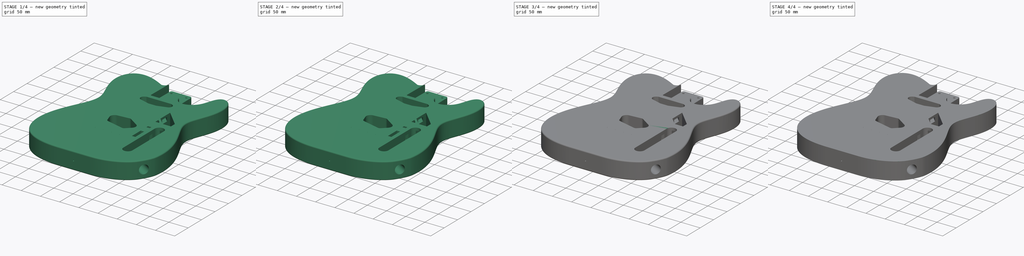
[diagram: build sequence overview — one tinted view per stage of 4, left to right]
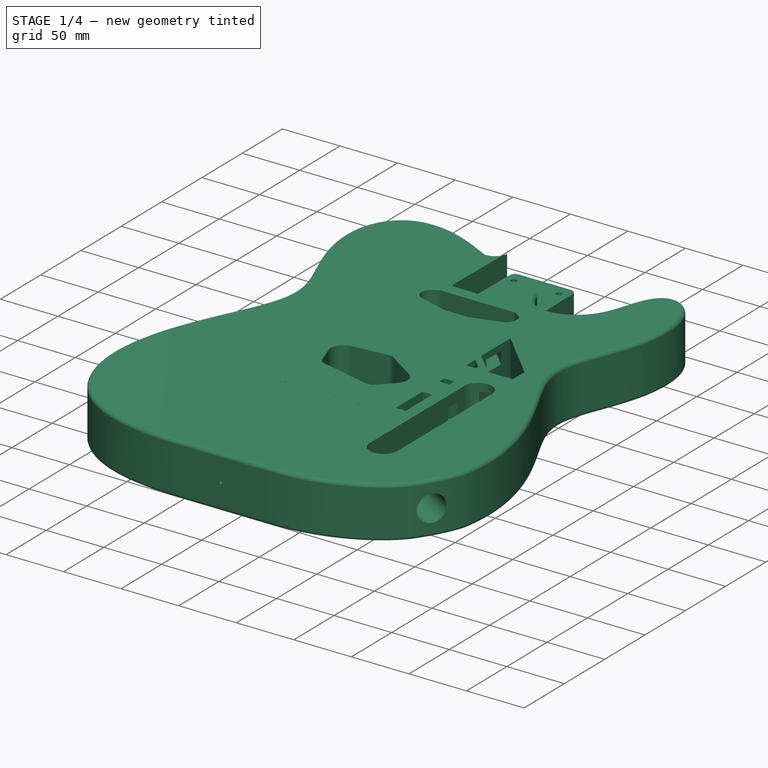
[diagram: stage 1 of 4 — iso view after this stage's code; geometry added in this stage tinted green]
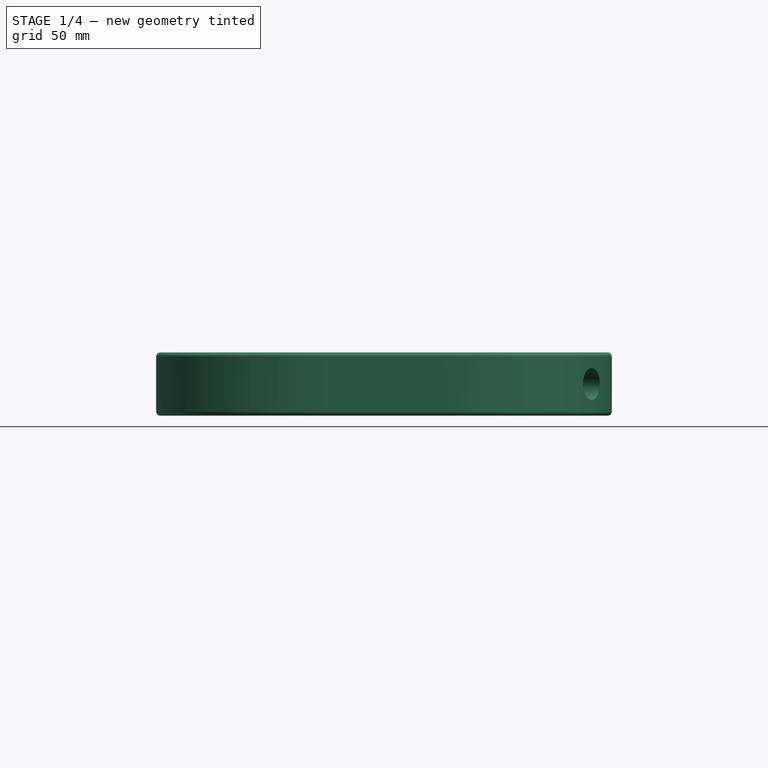
[diagram: stage 1 of 4 — front view after this stage's code; geometry added in this stage tinted green]
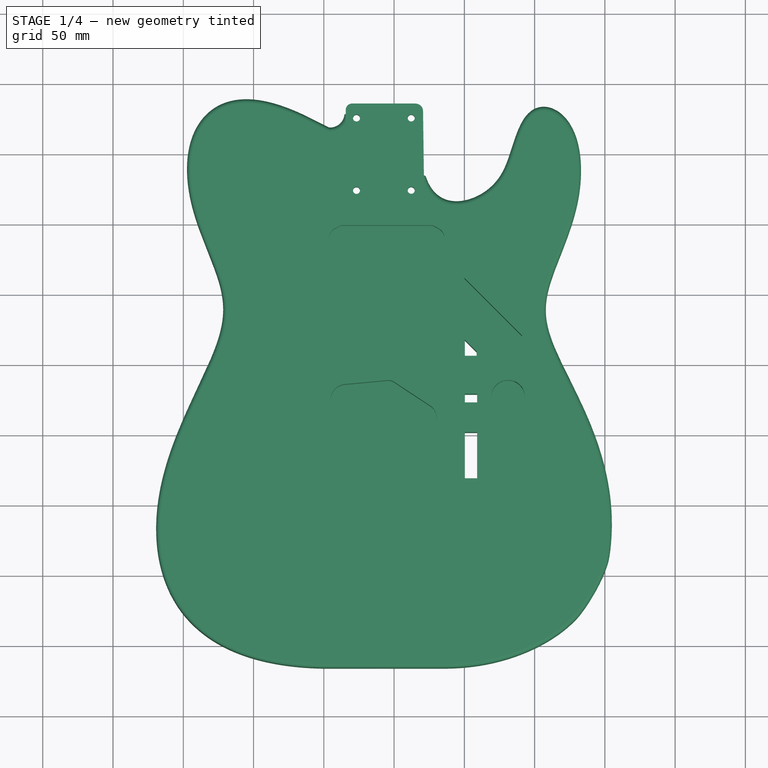
[diagram: stage 1 of 4 — top view after this stage's code; geometry added in this stage tinted green]
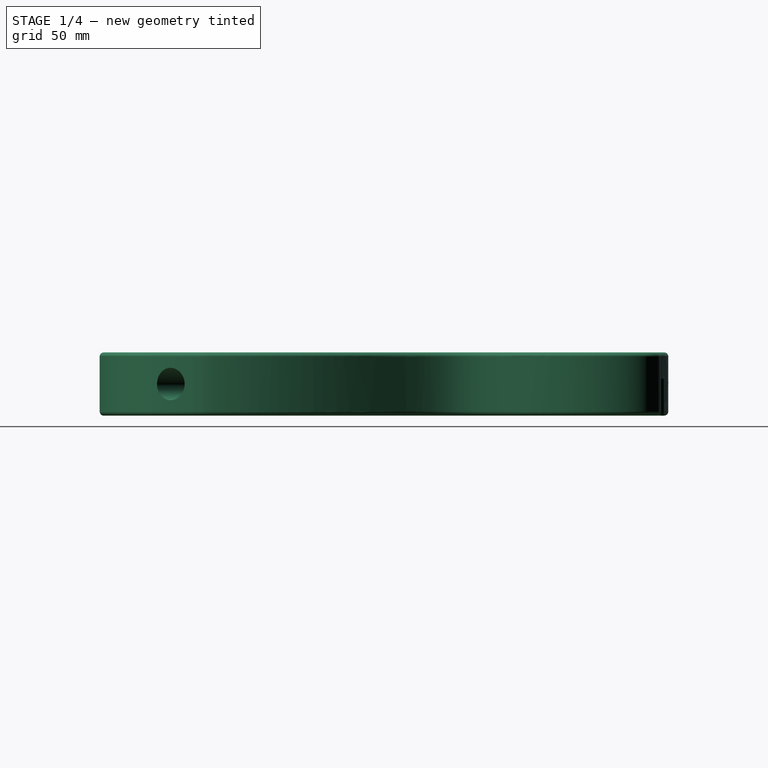
[diagram: stage 1 of 4 — right view after this stage's code; geometry added in this stage tinted green]
FCSTD DOCUMENT  (FreeCAD 0.19R24366 (Git))
Label: tele-body
License: All rights reserved
LicenseURL: http://en.wikipedia.org/wiki/All_rights_reserved
objects: Sketcher::SketchObject×9, PartDesign::Pad×9, Part::Feature×3, PartDesign::Pocket×3, App::Part×1, Part::MultiFuse×1, PartDesign::FeatureBase×1, PartDesign::Plane×1, PartDesign::Body×1
note: 40 computed .brp shape members not serialized (recipe doc carries the construction recipe); baked Part::Feature solids carry a one-line shape summary decoded from their .brp

FEATURE [Part::Feature] Part__Feature  label="(未保存)"
  shape: bbox 159.9 x 288 x 45 mm, 158 faces (baked)
FEATURE [Part::Feature] Part__Feature001  label="(未保存)001"
  shape: bbox 169.1 x 285.4 x 45.01 mm, 148 faces (baked)
FEATURE [Part::Feature] Part__Feature002  label="(未保存)002"
  shape: bbox 282.1 x 290.6 x 45.01 mm, 284 faces (baked)
FEATURE [App::Part] ___________  label="(未保存)003"
  Group = -> [Part__Feature,Part__Feature001,Part__Feature002]
  Origin = -> Origin
FEATURE [Part::MultiFuse] Fusion
  Refine = true
  Shapes = -> [Part__Feature,Part__Feature001,Part__Feature002]
FEATURE [PartDesign::FeatureBase] BaseFeature
  BaseFeature = -> Fusion
FEATURE [Sketcher::SketchObject] Sketch
  FullyConstrained = false
  MapMode = 5
  Placement = pos=(3.1e-15,-9e-16,44.0003) rot=(0,0,1;0rad)
  Support = -> [BaseFeature]
  sketch-geometry (20):
    g0: LineSegment StartX=-61.5985 StartY=-102.047 StartZ=0 EndX=47.036 EndY=-102.047 EndZ=0
    g1: LineSegment StartX=47.036 StartY=-102.047 StartZ=0 EndX=47.036 EndY=-94.486 EndZ=0
    g2: LineSegment StartX=47.036 StartY=-94.486 StartZ=0 EndX=-61.5985 EndY=-94.486 EndZ=0
    g3: LineSegment StartX=-61.5985 StartY=-94.486 StartZ=0 EndX=-61.5985 EndY=-102.047 EndZ=0
    g4: LineSegment StartX=-77.7647 StartY=-7.60141 StartZ=0 EndX=-68.3776 EndY=-7.60141 EndZ=0
    g5: LineSegment StartX=-68.3776 StartY=-7.60141 StartZ=0 EndX=-68.3776 EndY=-20.2963 EndZ=0
    g6: LineSegment StartX=-68.3776 StartY=-20.2963 StartZ=0 EndX=-77.7647 EndY=-20.2963 EndZ=0
    g7: LineSegment StartX=-77.7647 StartY=-20.2963 StartZ=0 EndX=-77.7647 EndY=-7.60141 EndZ=0
    g8: LineSegment StartX=-99.2486 StartY=39.4666 StartZ=0 EndX=-87.5371 EndY=39.4666 EndZ=0
    g9: LineSegment StartX=-87.5371 StartY=39.4666 StartZ=0 EndX=-87.5371 EndY=31.6888 EndZ=0
    g10: LineSegment StartX=-87.5371 StartY=31.6888 StartZ=0 EndX=-99.2486 EndY=31.6888 EndZ=0
    g11: LineSegment StartX=-99.2486 StartY=31.6888 StartZ=0 EndX=-99.2486 EndY=39.4666 EndZ=0
    g12: LineSegment StartX=48.1816 StartY=-1.61729 StartZ=0 EndX=60.7184 EndY=-1.61729 EndZ=0
    g13: LineSegment StartX=60.7184 StartY=-1.61729 StartZ=0 EndX=60.7184 EndY=-13.8873 EndZ=0
    g14: LineSegment StartX=60.7184 StartY=-13.8873 StartZ=0 EndX=48.1816 EndY=-13.8873 EndZ=0
    g15: LineSegment StartX=48.1816 StartY=-13.8873 StartZ=0 EndX=48.1816 EndY=-1.61729 EndZ=0
    g16: LineSegment StartX=79.0094 StartY=33.4684 StartZ=0 EndX=89.0172 EndY=32.8092 EndZ=0
    g17: LineSegment StartX=89.0172 StartY=32.8092 StartZ=0 EndX=86.2006 EndY=38.9816 EndZ=0
    g18: LineSegment StartX=86.2006 StartY=38.9816 StartZ=0 EndX=80.987 EndY=39.7607 EndZ=0
    g19: LineSegment StartX=80.987 StartY=39.7607 StartZ=0 EndX=79.0094 EndY=33.4684 EndZ=0
  constraints (36):
    c: Coincident(g0,g1)
    c: Coincident(g1,g2)
    c: Coincident(g2,g3)
    c: Coincident(g3,g0)
    c: Horizontal(g0)
    c: Horizontal(g2)
    c: Vertical(g1)
    c: Vertical(g3)
    c: Coincident(g4,g5)
    c: Coincident(g5,g6)
    c: Coincident(g6,g7)
    c: Coincident(g7,g4)
    c: Horizontal(g4)
    c: Horizontal(g6)
    c: Vertical(g5)
    c: Vertical(g7)
    c: Coincident(g8,g9)
    c: Coincident(g9,g10)
    c: Coincident(g10,g11)
    c: Coincident(g11,g8)
    c: Horizontal(g8)
    c: Horizontal(g10)
    c: Vertical(g9)
    c: Vertical(g11)
    c: Coincident(g12,g13)
    c: Coincident(g13,g14)
    c: Coincident(g14,g15)
    c: Coincident(g15,g12)
    c: Horizontal(g12)
    c: Horizontal(g14)
    c: Vertical(g13)
    c: Vertical(g15)
    c: Coincident(g16,g17)
    c: Coincident(g17,g18)
    c: Coincident(g18,g19)
    c: Coincident(g19,g16)
FEATURE [PartDesign::Pad] Pad
  BaseFeature = -> BaseFeature
  Direction = (1,1,1)
  Length = 10
  Length2 = 100
  Profile = -> Sketch
  Refine = true
  Type = 3
  UpToFace = -> BaseFeature [Face65]
FEATURE [Sketcher::SketchObject] Sketch001
  FullyConstrained = false
  MapMode = 5
  Placement = pos=(3.1e-15,-9e-16,44.0003) rot=(0,0,1;0rad)
  Support = -> [Pad]
  sketch-geometry (58):
    g0: LineSegment StartX=-60.3688 StartY=167.422 StartZ=0 EndX=-95.6713 EndY=181.694 EndZ=0
    g1: LineSegment StartX=-95.6713 StartY=181.694 StartZ=0 EndX=-101.733 EndY=169.192 EndZ=0
    g2: LineSegment StartX=-101.733 StartY=169.192 StartZ=0 EndX=-107.486 EndY=168.892 EndZ=0
    g3: LineSegment StartX=-107.486 StartY=168.892 StartZ=0 EndX=-114.037 EndY=181.122 EndZ=0
    g4: LineSegment StartX=-114.037 StartY=181.122 StartZ=0 EndX=-126.257 EndY=174.249 EndZ=0
    g5: LineSegment StartX=-126.257 StartY=174.249 StartZ=0 EndX=-135.186 EndY=164.78 EndZ=0
    g6: LineSegment StartX=-135.186 StartY=164.78 StartZ=0 EndX=-142.761 EndY=141.157 EndZ=0
    g7: LineSegment StartX=-142.761 StartY=141.157 StartZ=0 EndX=-134.45 EndY=105.539 EndZ=0
    g8: LineSegment StartX=-134.45 StartY=105.539 StartZ=0 EndX=-119.599 EndY=64.0739 EndZ=0
    g9: LineSegment StartX=-119.599 StartY=64.0739 StartZ=0 EndX=-113.366 EndY=38.2506 EndZ=0
    g10: LineSegment StartX=-113.366 StartY=38.2506 StartZ=0 EndX=-113.053 EndY=32.7654 EndZ=0
    g11: LineSegment StartX=-113.053 StartY=32.7654 StartZ=0 EndX=-136.153 EndY=-21.108 EndZ=0
    g12: LineSegment StartX=-136.153 StartY=-21.108 StartZ=0 EndX=-159.732 EndY=-82.9638 EndZ=0
    g13: LineSegment StartX=-159.732 StartY=-82.9638 StartZ=0 EndX=-162.146 EndY=-127.498 EndZ=0
    g14: LineSegment StartX=-162.146 StartY=-127.498 StartZ=0 EndX=-153.673 EndY=-159.8 EndZ=0
    g15: LineSegment StartX=-153.673 StartY=-159.8 StartZ=0 EndX=-134.499 EndY=-185.902 EndZ=0
    g16: LineSegment StartX=-134.499 StartY=-185.902 StartZ=0 EndX=-105.114 EndY=-199.852 EndZ=0
    g17: LineSegment StartX=-105.114 StartY=-199.852 StartZ=0 EndX=-85.6514 EndY=-206.55 EndZ=0
    g18: LineSegment StartX=-85.6514 StartY=-206.55 StartZ=0 EndX=-21.1341 EndY=-210.043 EndZ=0
    g19: LineSegment StartX=-21.1341 StartY=-210.043 StartZ=0 EndX=-16.4852 EndY=-208.791 EndZ=0
    g20: LineSegment StartX=-16.4852 StartY=-208.791 StartZ=0 EndX=-12.7304 EndY=-196.097 EndZ=0
    g21: LineSegment StartX=-12.7304 StartY=-196.097 StartZ=0 EndX=-5.48897 EndY=-195.471 EndZ=0
    g22: LineSegment StartX=-5.48897 StartY=-195.471 StartZ=0 EndX=-5.48897 EndY=-212.189 EndZ=0
    g23: LineSegment StartX=-5.48897 StartY=-212.189 StartZ=0 EndX=-1.01895 EndY=-212.546 EndZ=0
    g24: LineSegment StartX=-1.01895 StartY=-212.546 StartZ=0 EndX=31.3644 EndY=-210.054 EndZ=0
    g25: LineSegment StartX=31.3644 StartY=-210.054 StartZ=0 EndX=65.9213 EndY=-206.252 EndZ=0
    g26: LineSegment StartX=65.9213 StartY=-206.252 StartZ=0 EndX=91.395 EndY=-199.583 EndZ=0
    g27: LineSegment StartX=91.395 StartY=-199.583 StartZ=0 EndX=119.316 EndY=-181.082 EndZ=0
    g28: LineSegment StartX=119.316 StartY=-181.082 StartZ=0 EndX=69.6882 EndY=-156.45 EndZ=0
    g29: LineSegment StartX=69.6882 StartY=-156.45 StartZ=0 EndX=64.0551 EndY=-146.322 EndZ=0
    g30: LineSegment StartX=64.0551 StartY=-146.322 StartZ=0 EndX=65.654 EndY=-101.373 EndZ=0
    g31: LineSegment StartX=65.654 StartY=-101.373 StartZ=0 EndX=61.1449 EndY=-83.9348 EndZ=0
    g32: LineSegment StartX=61.1449 StartY=-83.9348 StartZ=0 EndX=50.6905 EndY=-84.6135 EndZ=0
    g33: LineSegment StartX=50.6905 StartY=-84.6135 StartZ=0 EndX=48.7518 EndY=-84.425 EndZ=0
    g34: LineSegment StartX=48.7518 StartY=-84.425 StartZ=0 EndX=38.6796 EndY=-108.559 EndZ=0
    g35: LineSegment StartX=38.6796 StartY=-108.559 StartZ=0 EndX=-57.1935 EndY=-102.622 EndZ=0
    g36: LineSegment StartX=-57.1935 StartY=-102.622 StartZ=0 EndX=-52.1475 EndY=-48.601 EndZ=0
    g37: LineSegment StartX=-52.1475 StartY=-48.601 StartZ=0 EndX=-52.1475 EndY=128.712 EndZ=0
    g38: LineSegment StartX=-52.1475 StartY=128.712 StartZ=0 EndX=-60.3688 EndY=167.422 EndZ=0
    g39: LineSegment StartX=42.5196 StartY=78.998 StartZ=0 EndX=93.6556 EndY=29.8205 EndZ=0
    g40: LineSegment StartX=93.6556 StartY=29.8205 StartZ=0 EndX=95.8013 EndY=40.4592 EndZ=0
    g41: LineSegment StartX=95.8013 StartY=40.4592 StartZ=0 EndX=110.014 EndY=75.9818 EndZ=0
    g42: LineSegment StartX=110.014 StartY=75.9818 StartZ=0 EndX=121.59 EndY=119.021 EndZ=0
    g43: LineSegment StartX=121.59 StartY=119.021 StartZ=0 EndX=121.59 EndY=149.758 EndZ=0
    g44: LineSegment StartX=121.59 StartY=149.758 StartZ=0 EndX=106.439 EndY=163.709 EndZ=0
    g45: LineSegment StartX=106.439 StartY=163.709 StartZ=0 EndX=85.6619 EndY=137.885 EndZ=0
    g46: LineSegment StartX=85.6619 StartY=137.885 StartZ=0 EndX=55.5797 EndY=109.274 EndZ=0
    g47: LineSegment StartX=55.5797 StartY=109.274 StartZ=0 EndX=45.7847 EndY=105.712 EndZ=0
    g48: LineSegment StartX=45.7847 StartY=105.712 StartZ=0 EndX=42.5196 EndY=78.998 EndZ=0
    g49: LineSegment StartX=101.166 StartY=-124.48 StartZ=0 EndX=130.388 EndY=-143.687 EndZ=0
    g50: LineSegment StartX=130.388 StartY=-143.687 StartZ=0 EndX=147.46 EndY=-137.018 EndZ=0
    g51: LineSegment StartX=147.46 StartY=-137.018 StartZ=0 EndX=147.46 EndY=-108.645 EndZ=0
    g52: LineSegment StartX=147.46 StartY=-108.645 StartZ=0 EndX=145.731 EndY=-85.0381 EndZ=0
    g53: LineSegment StartX=145.731 StartY=-85.0381 StartZ=0 EndX=134.242 EndY=-47.4095 EndZ=0
    g54: LineSegment StartX=134.242 StartY=-47.4095 StartZ=0 EndX=126.742 EndY=-28.2665 EndZ=0
    g55: LineSegment StartX=126.742 StartY=-28.2665 StartZ=0 EndX=115.202 EndY=-14.9954 EndZ=0
    g56: LineSegment StartX=115.202 StartY=-14.9954 StartZ=0 EndX=101.166 EndY=-19.9124 EndZ=0
    g57: LineSegment StartX=101.166 StartY=-19.9124 StartZ=0 EndX=101.166 EndY=-124.48 EndZ=0
  constraints (63):
    c: Coincident(g0,g1)
    c: Coincident(g1,g2)
    c: Coincident(g2,g3)
    c: Coincident(g3,g4)
    c: Coincident(g4,g5)
    c: Coincident(g5,g6)
    c: Coincident(g6,g7)
    c: Coincident(g7,g8)
    c: Coincident(g8,g9)
    c: Coincident(g9,g10)
    c: Coincident(g10,g11)
    c: Coincident(g11,g12)
    c: Coincident(g12,g13)
    c: Coincident(g13,g14)
    c: Coincident(g14,g15)
    c: Coincident(g15,g16)
    c: Coincident(g16,g17)
    c: Coincident(g17,g18)
    c: Coincident(g18,g19)
    c: Coincident(g19,g20)
    c: Coincident(g20,g21)
    c: Coincident(g21,g22)
    c: Vertical(g22)
    c: Coincident(g22,g23)
    c: Coincident(g23,g24)
    c: Coincident(g24,g25)
    c: Coincident(g25,g26)
    c: Coincident(g26,g27)
    c: Coincident(g27,g28)
    c: Coincident(g28,g29)
    c: Coincident(g29,g30)
    c: Coincident(g30,g31)
    c: Coincident(g31,g32)
    c: Coincident(g32,g33)
    c: Coincident(g33,g34)
    c: Coincident(g34,g35)
    c: Coincident(g35,g36)
    c: Coincident(g36,g37)
    c: Vertical(g37)
    c: Coincident(g37,g38)
    c: Coincident(g38,g0)
    c: Coincident(g39,g40)
    c: Coincident(g40,g41)
    c: Coincident(g41,g42)
    c: Coincident(g42,g43)
    c: Vertical(g43)
    c: Coincident(g43,g44)
    c: Coincident(g44,g45)
    c: Coincident(g45,g46)
    c: Coincident(g46,g47)
    c: Coincident(g47,g48)
    c: Coincident(g48,g39)
    c: Coincident(g49,g50)
    c: Coincident(g50,g51)
    c: Vertical(g51)
    c: Coincident(g51,g52)
    c: Coincident(g52,g53)
    c: Coincident(g53,g54)
    c: Coincident(g54,g55)
    c: Coincident(g55,g56)
    c: Coincident(g56,g57)
    c: Coincident(g57,g49)
    c: Vertical(g57)
FEATURE [PartDesign::Pad] Pad001
  BaseFeature = -> Pad
  Direction = (1,1,1)
  Length = 10
  Length2 = 100
  Profile = -> Sketch001
  Refine = true
  Type = 3
  UpToFace = -> Pad [Face370]
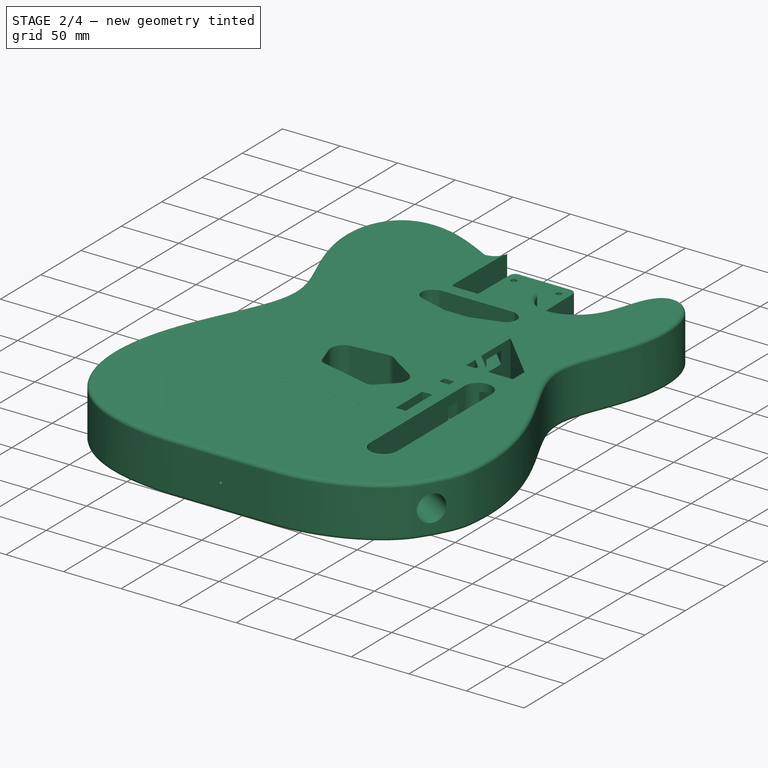
[diagram: stage 2 of 4 — iso view after this stage's code; geometry added in this stage tinted green]
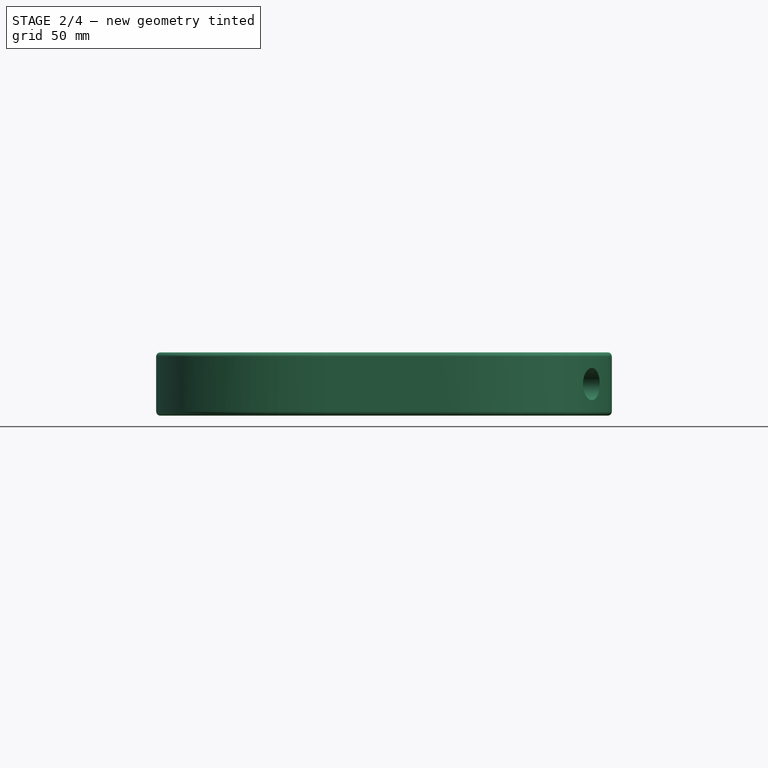
[diagram: stage 2 of 4 — front view after this stage's code; geometry added in this stage tinted green]
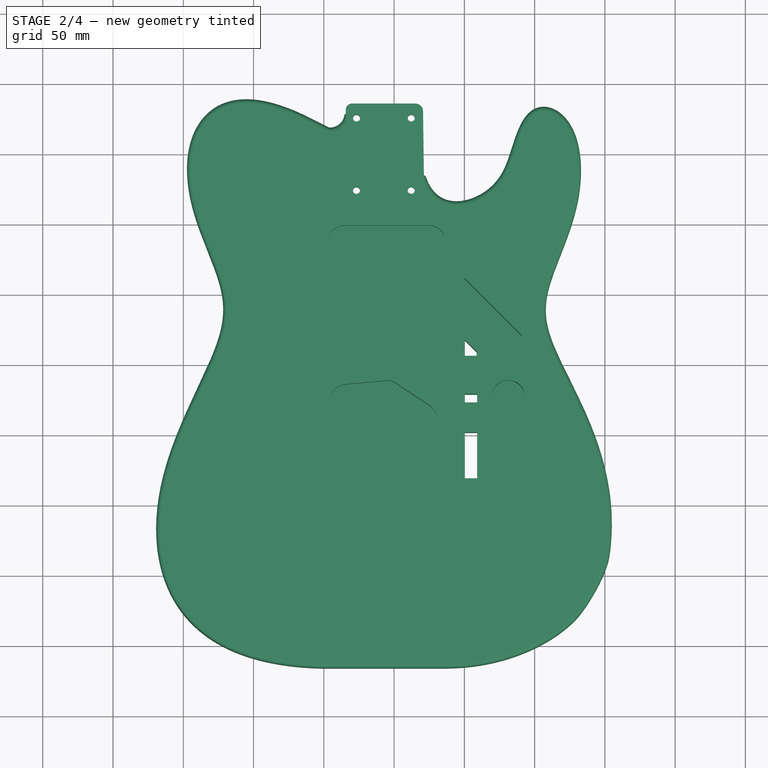
[diagram: stage 2 of 4 — top view after this stage's code; geometry added in this stage tinted green]
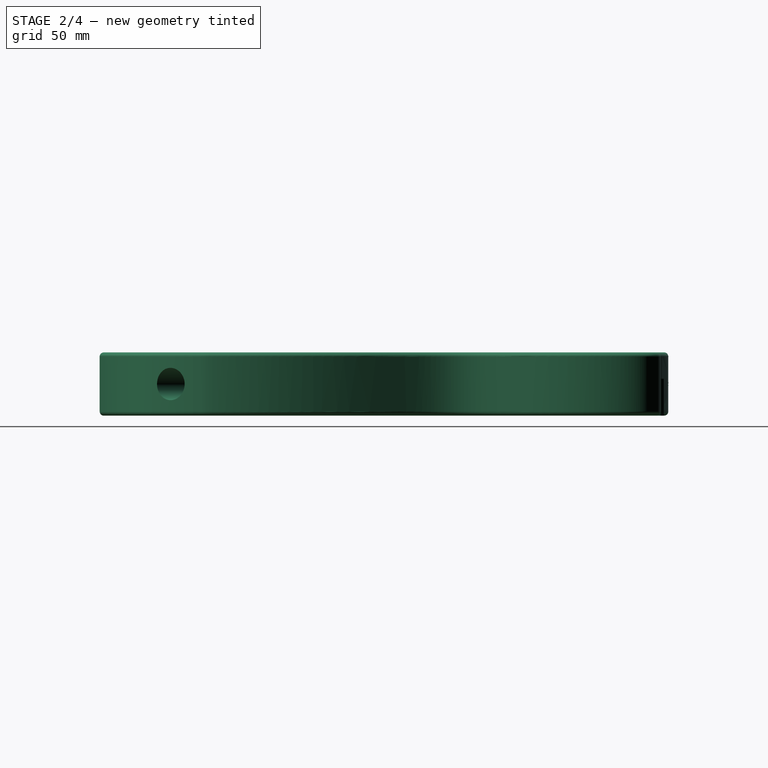
[diagram: stage 2 of 4 — right view after this stage's code; geometry added in this stage tinted green]
FEATURE [Sketcher::SketchObject] Sketch002
  FullyConstrained = false
  MapMode = 5
  Placement = pos=(0,0,-0.999699) rot=(1,0,0;3.14159rad)
  Support = -> [Pad001]
  sketch-geometry (5):
    g0: LineSegment StartX=56.0816 StartY=45.4386 StartZ=0 EndX=45.6218 EndY=42.2202 EndZ=0
    g1: LineSegment StartX=45.6218 StartY=42.2202 StartZ=0 EndX=47.4992 EndY=29.7935 EndZ=0
    g2: LineSegment StartX=47.4992 StartY=29.7935 StartZ=0 EndX=60.0152 EndY=29.7935 EndZ=0
    g3: LineSegment StartX=60.0152 StartY=29.7935 StartZ=0 EndX=60.0152 EndY=43.74 EndZ=0
    g4: LineSegment StartX=60.0152 StartY=43.74 StartZ=0 EndX=56.0816 EndY=45.4386 EndZ=0
  constraints (7):
    c: Coincident(g0,g1)
    c: Coincident(g1,g2)
    c: Horizontal(g2)
    c: Coincident(g2,g3)
    c: Vertical(g3)
    c: Coincident(g3,g4)
    c: Coincident(g4,g0)
FEATURE [PartDesign::Pad] Pad002
  BaseFeature = -> Pad001
  Direction = (1,1,1)
  Length = 15
  Length2 = 100
  Profile = -> Sketch002
  Reversed = true
  Type = 0
FEATURE [Sketcher::SketchObject] Sketch003
  FullyConstrained = false
  MapMode = 5
  Placement = pos=(0,0,-0.999699) rot=(1,0,0;3.14159rad)
  Support = -> [Pad002]
  sketch-geometry (4):
    g0: LineSegment StartX=51.7027 StartY=85.8647 StartZ=0 EndX=56.7985 EndY=85.8647 EndZ=0
    g1: LineSegment StartX=56.7985 StartY=85.8647 StartZ=0 EndX=56.7985 EndY=81.5735 EndZ=0
    g2: LineSegment StartX=56.7985 StartY=81.5735 StartZ=0 EndX=51.7027 EndY=81.5735 EndZ=0
    g3: LineSegment StartX=51.7027 StartY=81.5735 StartZ=0 EndX=51.7027 EndY=85.8647 EndZ=0
  constraints (8):
    c: Coincident(g0,g1)
    c: Coincident(g1,g2)
    c: Coincident(g2,g3)
    c: Coincident(g3,g0)
    c: Horizontal(g0)
    c: Horizontal(g2)
    c: Vertical(g1)
    c: Vertical(g3)
FEATURE [PartDesign::Pad] Pad003
  BaseFeature = -> Pad002
  Direction = (1,1,1)
  Length = 10
  Length2 = 100
  Profile = -> Sketch003
  Refine = true
  Type = 3
  UpToFace = -> Pad002 [Face2]
FEATURE [Sketcher::SketchObject] Sketch004
  FullyConstrained = false
  MapMode = 5
  Placement = pos=(0,0,-0.999699) rot=(1,0,0;3.14159rad)
  Support = -> [Pad003]
  sketch-geometry (4):
    g0: LineSegment StartX=50.8388 StartY=-20.836 StartZ=0 EndX=56.2028 EndY=-20.836 EndZ=0
    g1: LineSegment StartX=56.2028 StartY=-20.836 StartZ=0 EndX=57.5438 EndY=-26.8258 EndZ=0
    g2: LineSegment StartX=57.5438 StartY=-26.8258 StartZ=0 EndX=49.9448 EndY=-28.7926 EndZ=0
    g3: LineSegment StartX=49.9448 StartY=-28.7926 StartZ=0 EndX=50.8388 EndY=-20.836 EndZ=0
  constraints (5):
    c: Horizontal(g0)
    c: Coincident(g0,g1)
    c: Coincident(g1,g2)
    c: Coincident(g2,g3)
    c: Coincident(g3,g0)
FEATURE [PartDesign::Pad] Pad004
  BaseFeature = -> Pad003
  Direction = (1,1,1)
  Length = 9
  Length2 = 100
  Profile = -> Sketch004
  Refine = true
  Reversed = true
  Type = 0
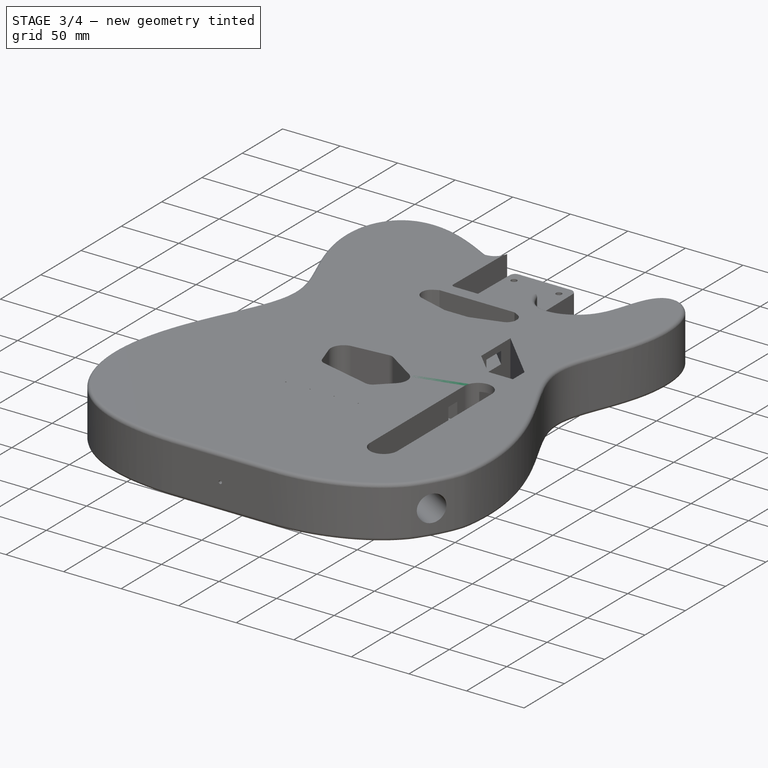
[diagram: stage 3 of 4 — iso view after this stage's code; geometry added in this stage tinted green]
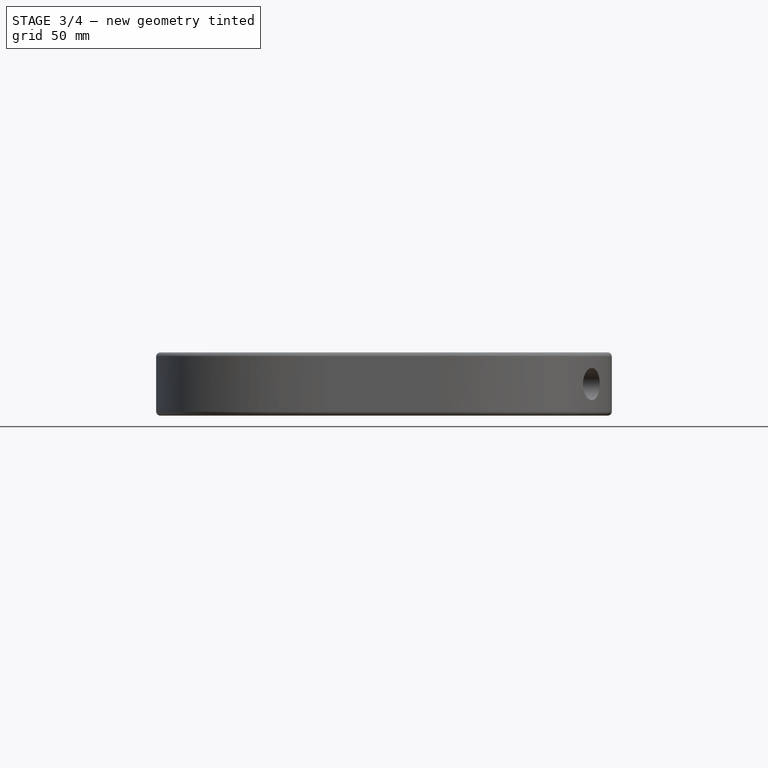
[diagram: stage 3 of 4 — front view after this stage's code; geometry added in this stage tinted green]
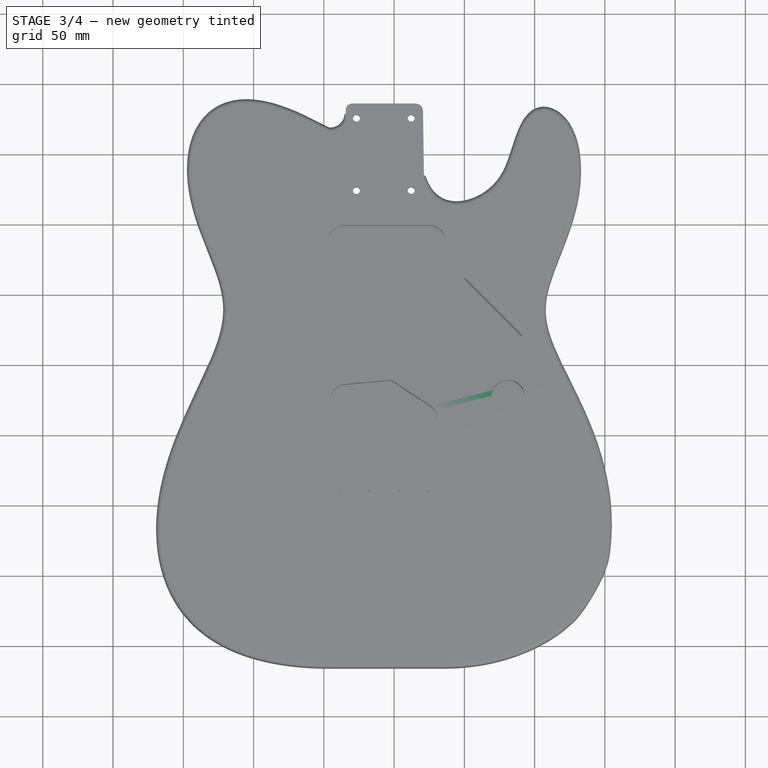
[diagram: stage 3 of 4 — top view after this stage's code; geometry added in this stage tinted green]
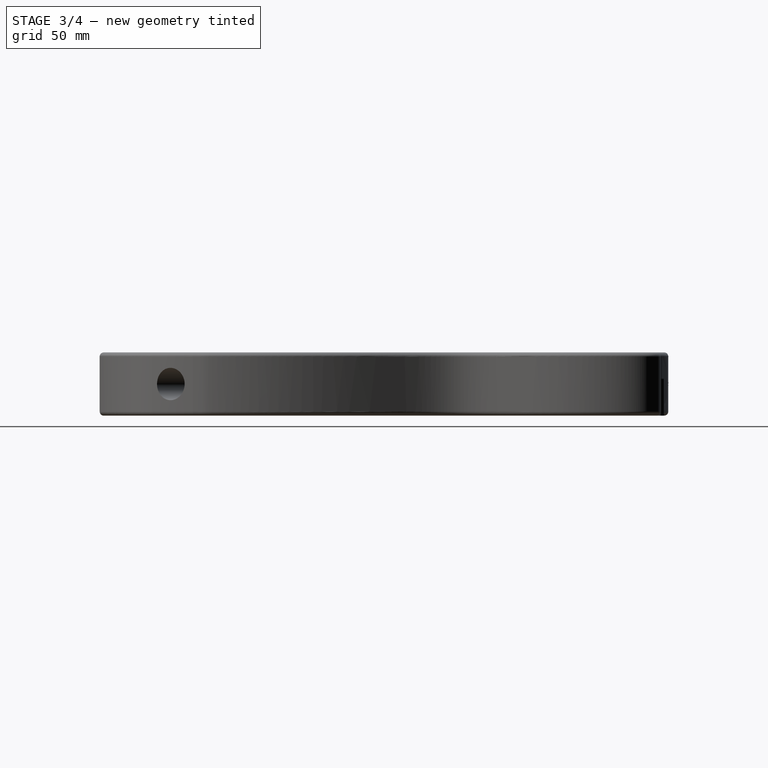
[diagram: stage 3 of 4 — right view after this stage's code; geometry added in this stage tinted green]
FEATURE [Sketcher::SketchObject] Sketch005
  FullyConstrained = false
  MapMode = 5
  Placement = pos=(0,0,-0.999699) rot=(1,0,0;3.14159rad)
  Support = -> [Pad004]
  sketch-geometry (11):
    g0: LineSegment StartX=46.6339 StartY=-25.8346 StartZ=0 EndX=56.1683 EndY=-17.9844 EndZ=0
    g1: LineSegment StartX=56.1683 StartY=-17.9844 StartZ=0 EndX=64.6762 EndY=-5.35711 EndZ=0
    g2: LineSegment StartX=64.6762 StartY=-5.35711 StartZ=0 EndX=65.593 EndY=14.9677 EndZ=0
    g3: LineSegment StartX=65.593 StartY=14.9677 StartZ=0 EndX=63.4603 EndY=29.5863 EndZ=0
    g4: LineSegment StartX=63.4603 StartY=29.5863 StartZ=0 EndX=44.7885 EndY=28.1192 EndZ=0
    g5: LineSegment StartX=44.7885 StartY=28.1192 StartZ=0 EndX=33.9001 EndY=-23.4471 EndZ=0
    g6: LineSegment StartX=33.9001 StartY=-23.4471 StartZ=0 EndX=46.6339 EndY=-25.8346 EndZ=0
    g7: LineSegment StartX=44.3171 StartY=84.5105 StartZ=0 EndX=63.9073 EndY=85.1042 EndZ=0
    g8: LineSegment StartX=63.9073 StartY=85.1042 StartZ=0 EndX=61.2359 EndY=45.627 EndZ=0
    g9: LineSegment StartX=61.2359 StartY=45.627 StartZ=0 EndX=42.2394 EndY=45.627 EndZ=0
    g10: LineSegment StartX=42.2394 StartY=45.627 StartZ=0 EndX=44.3171 EndY=84.5105 EndZ=0
  constraints (12):
    c: Coincident(g0,g1)
    c: Coincident(g1,g2)
    c: Coincident(g2,g3)
    c: Coincident(g3,g4)
    c: Coincident(g4,g5)
    c: Coincident(g5,g6)
    c: Coincident(g6,g0)
    c: Coincident(g7,g8)
    c: Coincident(g8,g9)
    c: Horizontal(g9)
    c: Coincident(g9,g10)
    c: Coincident(g10,g7)
FEATURE [PartDesign::Pad] Pad005
  BaseFeature = -> Pad004
  Direction = (1,1,1)
  Length = 10
  Length2 = 100
  Profile = -> Sketch005
  Refine = true
  Type = 3
  UpToFace = -> Pad004 [Face2]
FEATURE [PartDesign::Plane] DatumPlane
  AttachmentOffset = pos=(0,0,-15) rot=(0,0,1;0rad)
  Length = 396.697
  MapMode = 5
  Placement = pos=(0,0,14.0003) rot=(1,0,0;3.14159rad)
  ResizeMode = 0
  Support = -> [Pad005]
  Width = 477.089
FEATURE [Sketcher::SketchObject] Sketch006
  FullyConstrained = false
  MapMode = 5
  Placement = pos=(0,0,14.0003) rot=(1,0,0;3.14159rad)
  Support = -> [DatumPlane]
  sketch-geometry (11):
    g0: LineSegment StartX=94.3698 StartY=-33.1074 StartZ=0 EndX=106.475 EndY=-33.1074 EndZ=0
    g1: LineSegment StartX=106.475 StartY=-33.1074 StartZ=0 EndX=106.056 EndY=-35.085 EndZ=0
    g2: LineSegment StartX=106.056 StartY=-35.085 StartZ=0 EndX=102.939 EndY=-39.5796 EndZ=0
    g3: LineSegment StartX=102.939 StartY=-39.5796 StartZ=0 EndX=96.5871 EndY=-38.9204 EndZ=0
    g4: LineSegment StartX=96.5871 StartY=-38.9204 StartZ=0 EndX=94.3698 EndY=-33.1074 EndZ=0
    g5: LineSegment StartX=-120.1 StartY=-33.6418 StartZ=0 EndX=-117.409 EndY=-31.8743 EndZ=0
    g6: LineSegment StartX=-117.409 StartY=-31.8743 StartZ=0 EndX=-112.589 EndY=-32.5572 EndZ=0
    g7: LineSegment StartX=-112.589 StartY=-32.5572 StartZ=0 EndX=-113.432 EndY=-35.7306 EndZ=0
    g8: LineSegment StartX=-113.432 StartY=-35.7306 StartZ=0 EndX=-116.445 EndY=-38.7434 EndZ=0
    g9: LineSegment StartX=-116.445 StartY=-38.7434 StartZ=0 EndX=-118.936 EndY=-38.3417 EndZ=0
    g10: LineSegment StartX=-118.936 StartY=-38.3417 StartZ=0 EndX=-120.1 EndY=-33.6418 EndZ=0
  constraints (12):
    c: Horizontal(g0)
    c: Coincident(g0,g1)
    c: Coincident(g1,g2)
    c: Coincident(g2,g3)
    c: Coincident(g3,g4)
    c: Coincident(g4,g0)
    c: Coincident(g5,g6)
    c: Coincident(g6,g7)
    c: Coincident(g7,g8)
    c: Coincident(g8,g9)
    c: Coincident(g9,g10)
    c: Coincident(g10,g5)
FEATURE [PartDesign::Pad] Pad006
  BaseFeature = -> Pad005
  Direction = (1,1,1)
  Length = 23
  Length2 = 100
  Profile = -> Sketch006
  Refine = true
  Reversed = true
  Type = 0
FEATURE [PartDesign::Pocket] Pocket
  BaseFeature = -> Pad006
  Length = 3.5
  Length2 = 100
  Profile = -> Pad006 [Face107,Face106,Face108,Face109]
  Type = 0
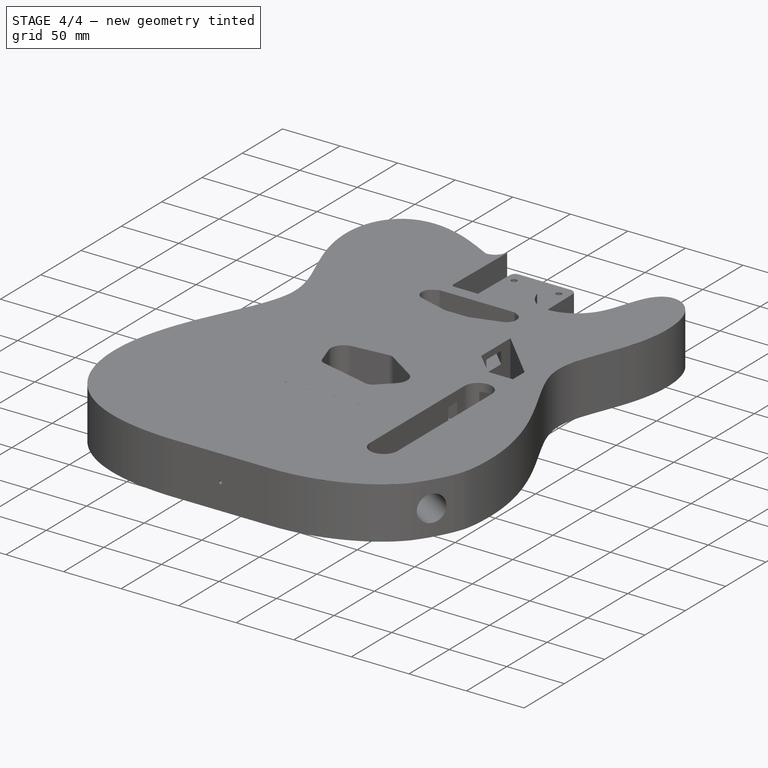
[diagram: stage 4 of 4 — iso view after this stage's code; geometry added in this stage tinted green]
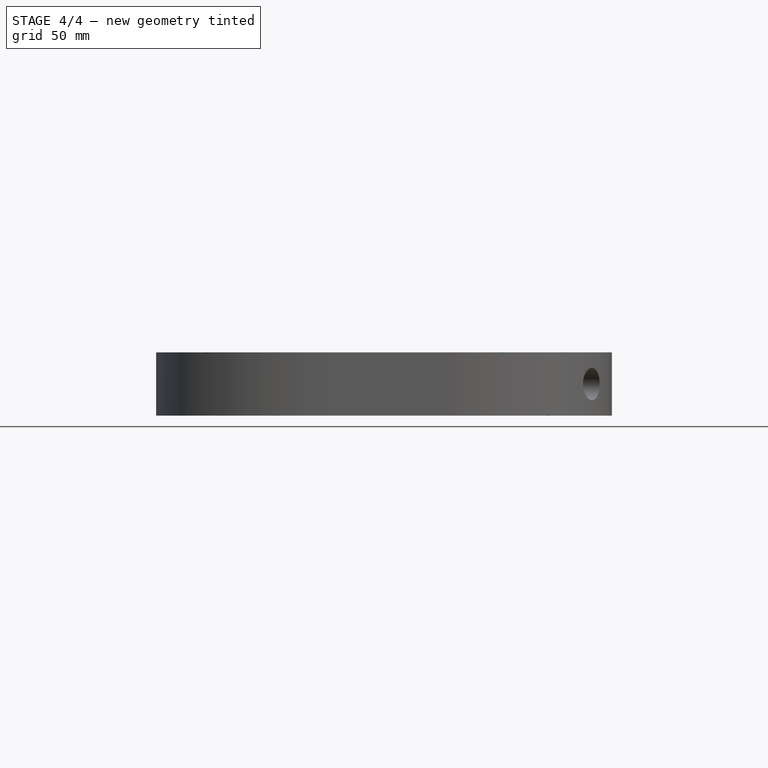
[diagram: stage 4 of 4 — front view after this stage's code; geometry added in this stage tinted green]
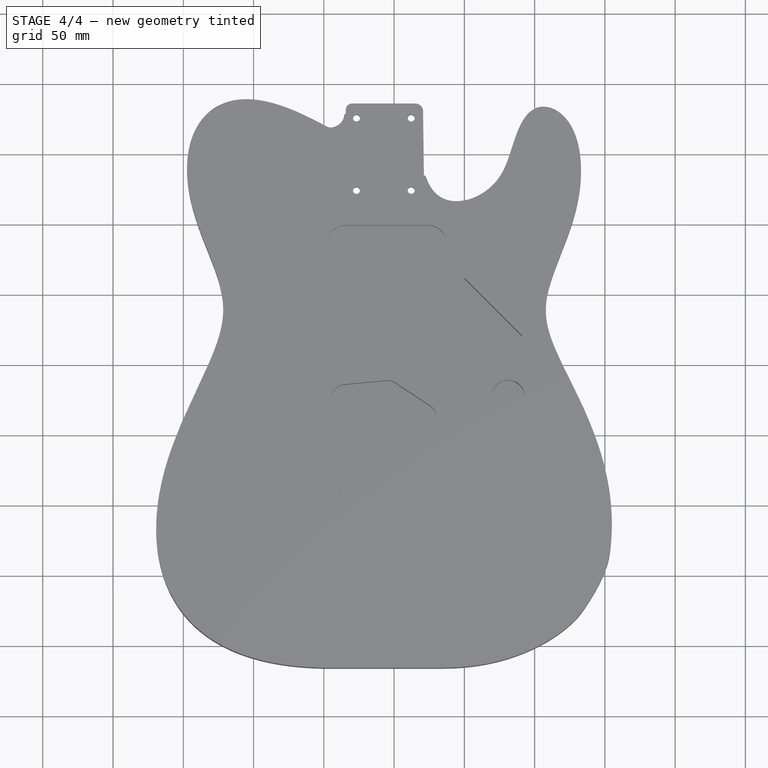
[diagram: stage 4 of 4 — top view after this stage's code; geometry added in this stage tinted green]
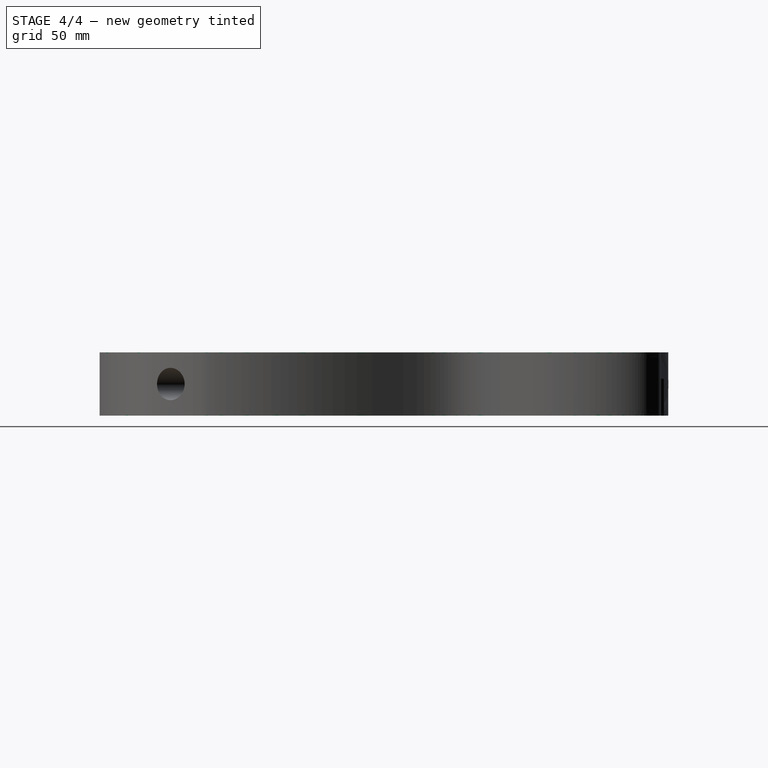
[diagram: stage 4 of 4 — right view after this stage's code; geometry added in this stage tinted green]
FEATURE [Sketcher::SketchObject] Sketch007
  FullyConstrained = false
  MapMode = 5
  Placement = pos=(3.1e-15,-9e-16,44.0003) rot=(0,0,1;0rad)
  Support = -> [Pocket]
  sketch-geometry (4):
    g0: LineSegment StartX=-181.94 StartY=203.929 StartZ=0 EndX=253.224 EndY=203.929 EndZ=0
    g1: LineSegment StartX=253.224 StartY=203.929 StartZ=0 EndX=253.224 EndY=-273.77 EndZ=0
    g2: LineSegment StartX=253.224 StartY=-273.77 StartZ=0 EndX=-181.94 EndY=-273.77 EndZ=0
    g3: LineSegment StartX=-181.94 StartY=-273.77 StartZ=0 EndX=-181.94 EndY=203.929 EndZ=0
  constraints (8):
    c: Coincident(g0,g1)
    c: Coincident(g1,g2)
    c: Coincident(g2,g3)
    c: Coincident(g3,g0)
    c: Horizontal(g0)
    c: Horizontal(g2)
    c: Vertical(g1)
    c: Vertical(g3)
FEATURE [PartDesign::Pocket] Pocket001
  BaseFeature = -> Pocket
  Length = 3.5
  Length2 = 100
  Profile = -> Sketch007
  Type = 0
FEATURE [Sketcher::SketchObject] Sketch008
  FullyConstrained = false
  MapMode = 5
  Placement = pos=(0,0,-0.999699) rot=(1,0,0;3.14159rad)
  Support = -> [Pocket001]
  sketch-geometry (4):
    g0: LineSegment StartX=-232.745 StartY=248.174 StartZ=0 EndX=214.674 EndY=248.174 EndZ=0
    g1: LineSegment StartX=214.674 StartY=248.174 StartZ=0 EndX=214.674 EndY=-210.211 EndZ=0
    g2: LineSegment StartX=214.674 StartY=-210.211 StartZ=0 EndX=-232.745 EndY=-210.211 EndZ=0
    g3: LineSegment StartX=-232.745 StartY=-210.211 StartZ=0 EndX=-232.745 EndY=248.174 EndZ=0
  constraints (8):
    c: Coincident(g0,g1)
    c: Coincident(g1,g2)
    c: Coincident(g2,g3)
    c: Coincident(g3,g0)
    c: Horizontal(g0)
    c: Horizontal(g2)
    c: Vertical(g1)
    c: Vertical(g3)
FEATURE [PartDesign::Pocket] Pocket002
  BaseFeature = -> Pocket001
  Length = 3.5
  Length2 = 100
  Profile = -> Sketch008
  Refine = true
  Type = 0
FEATURE [PartDesign::Pad] Pad007
  BaseFeature = -> Pocket002
  Direction = (1,1,1)
  Length = 3.5
  Length2 = 100
  Profile = -> Pocket002 [Face84]
  Refine = true
  Type = 0
FEATURE [PartDesign::Pad] Pad008
  BaseFeature = -> Pad007
  Direction = (1,1,1)
  Length = 3.5
  Length2 = 100
  Profile = -> Pad007 [Face5]
  Refine = true
  Type = 0
FEATURE [PartDesign::Body] Body
  BaseFeature = -> Fusion
  Group = -> [BaseFeature,Sketch,Pad,Sketch001,Pad001,Sketch002,Pad002,Sketch003,Pad003,Sketch004,Pad004,Sketch005,Pad005,DatumPlane,Sketch006,Pad006,Pocket,Sketch007,Pocket001,Sketch008,Pocket002,Pad007,Pad008]
  Origin = -> Origin001
  Tip = -> Pad008
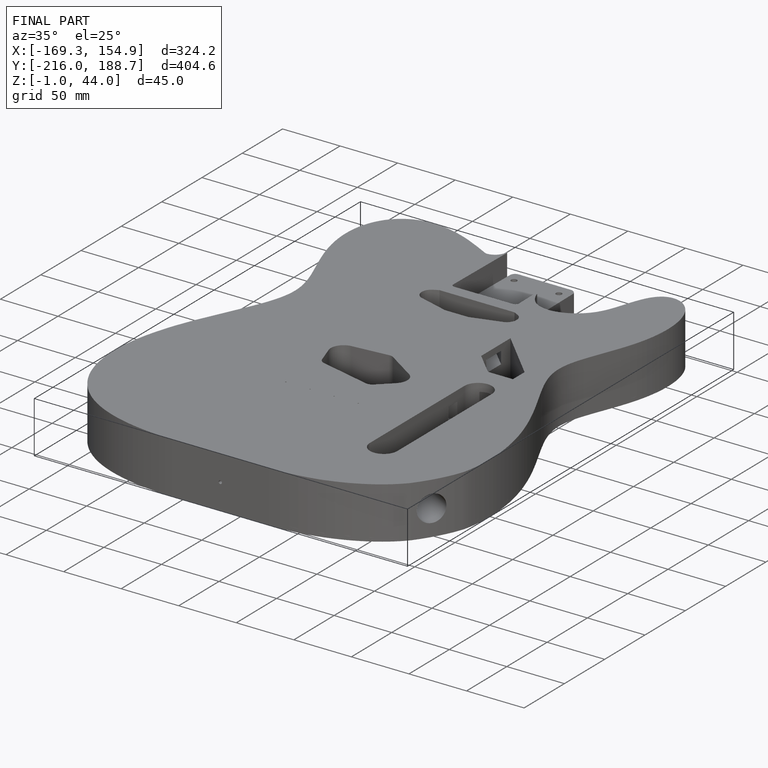
[diagram: finished part — iso view with bounding-box wireframe]
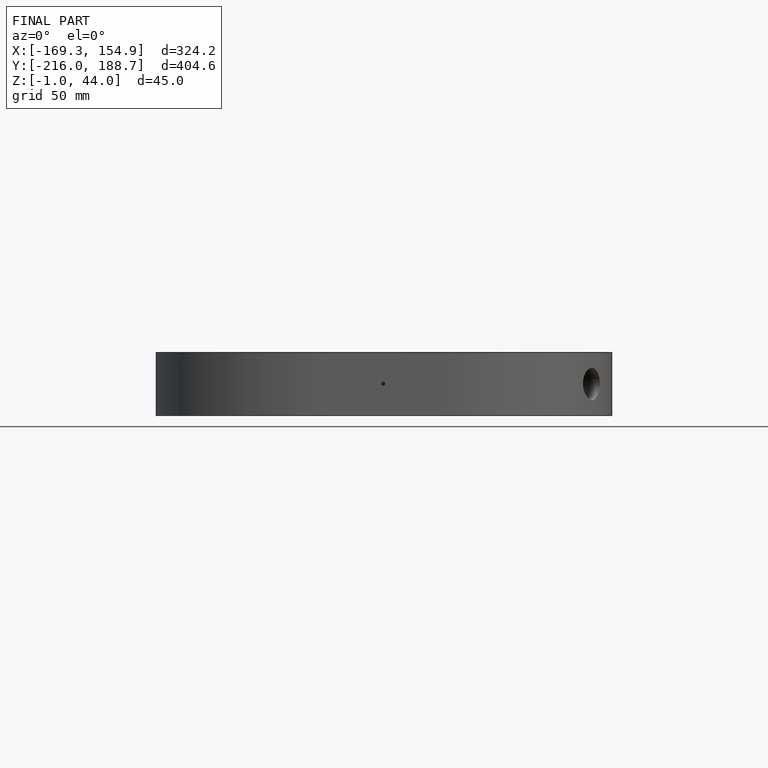
[diagram: finished part — front view with bounding-box wireframe]
